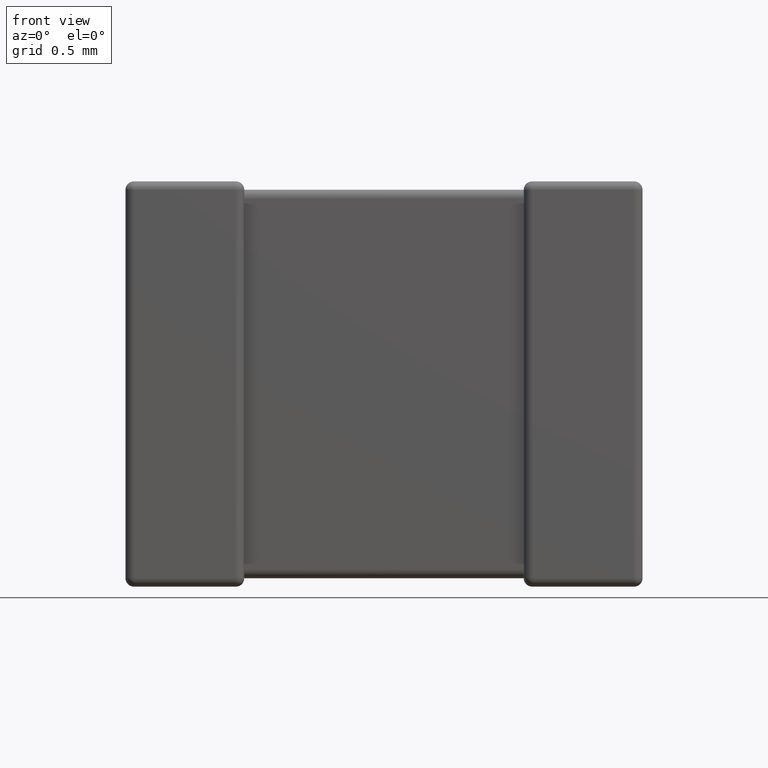
[diagram: clean part render]
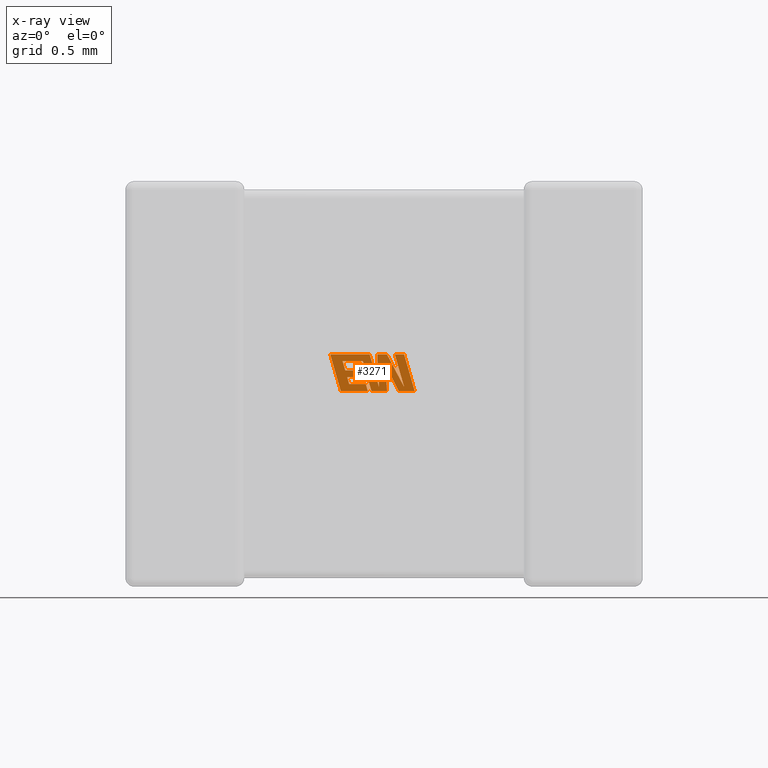
[diagram: x-ray — body ghosted, one internal face saturated and labeled with its STEP entity id]
A machine part, front view, then the same camera in x-ray: the body is ghosted and one INTERNAL B-rep face — a face not visible from any outside direction — is saturated and labeled: STEP entity #3271.
In plain terms, the highlighted planar face has unit normal (0, -1, 0).
Its self-contained STEP definition (entity closure, byte-faithful):
#7 = VECTOR ( 'NONE', #524, 1000.000000000000000 ) ;
#12 = LINE ( 'NONE', #2098, #1568 ) ;
#37 = VERTEX_POINT ( 'NONE', #759 ) ;
#47 = CARTESIAN_POINT ( 'NONE',  ( 1.719779381685080600, 2.239680000000000300, -1.450588152432583400 ) ) ;
#48 = VERTEX_POINT ( 'NONE', #4341 ) ;
#178 = VERTEX_POINT ( 'NONE', #3732 ) ;
#198 = EDGE_CURVE ( 'NONE', #2280, #4676, #2817, .T. ) ;
#221 = DIRECTION ( 'NONE',  ( -1.000000000000000000, 0.0000000000000000000, 0.0000000000000000000 ) ) ;
#295 = DIRECTION ( 'NONE',  ( 1.000000000000000000, 0.0000000000000000000, 0.0000000000000000000 ) ) ;
#297 = VECTOR ( 'NONE', #1107, 1000.000000000000100 ) ;
#300 = VECTOR ( 'NONE', #2156, 1000.000000000000200 ) ;
#311 = EDGE_CURVE ( 'NONE', #4676, #2644, #3141, .T. ) ;
#332 = CARTESIAN_POINT ( 'NONE',  ( 1.993825055172228100, 2.239680000000000300, -1.238589999999999900 ) ) ;
#382 = VECTOR ( 'NONE', #4554, 1000.000000000000000 ) ;
#413 = ORIENTED_EDGE ( 'NONE', *, *, #1275, .F. ) ;
#439 = CARTESIAN_POINT ( 'NONE',  ( 1.871558922654546400, 2.239680000000000300, -1.500427594001502800 ) ) ;
#465 = ORIENTED_EDGE ( 'NONE', *, *, #3300, .F. ) ;
#481 = CARTESIAN_POINT ( 'NONE',  ( 1.698695883152314000, 2.239680000000000300, -1.401886401347971300 ) ) ;
#492 = VECTOR ( 'NONE', #2305, 1000.000000000000100 ) ;
#515 = CARTESIAN_POINT ( 'NONE',  ( 1.954265106198868500, 2.239680000000000300, -1.500427594001502800 ) ) ;
#524 = DIRECTION ( 'NONE',  ( 0.4668459304955247000, 0.0000000000000000000, -0.8843386665637592600 ) ) ;
#534 = LINE ( 'NONE', #3538, #1614 ) ;
#540 = CARTESIAN_POINT ( 'NONE',  ( 1.994551138952188600, 2.239680000000000300, -1.472819691327440900 ) ) ;
#545 = CARTESIAN_POINT ( 'NONE',  ( 1.733934830817171400, 2.239680000000000300, -1.500427594001502800 ) ) ;
#560 = ORIENTED_EDGE ( 'NONE', *, *, #3293, .F. ) ;
#566 = CARTESIAN_POINT ( 'NONE',  ( 1.540497991155025600, 2.239680000000000300, -1.500427594001502800 ) ) ;
#639 = CARTESIAN_POINT ( 'NONE',  ( 1.814163107572999100, 2.239680000000000300, -1.471697127589175900 ) ) ;
#724 = VECTOR ( 'NONE', #2971, 1000.000000000000000 ) ;
#759 = CARTESIAN_POINT ( 'NONE',  ( 1.994551138952188600, 2.239680000000000300, -1.472819691327440900 ) ) ;
#783 = ORIENTED_EDGE ( 'NONE', *, *, #311, .F. ) ;
#798 = CARTESIAN_POINT ( 'NONE',  ( 1.553959998429676800, 2.239680000000000300, -1.288404761090040000 ) ) ;
#837 = CARTESIAN_POINT ( 'NONE',  ( 1.801096784111157800, 2.239680000000000300, -1.238589999999999900 ) ) ;
#862 = CARTESIAN_POINT ( 'NONE',  ( 2.069105294098018800, 2.239680000000000300, -1.500427594001502800 ) ) ;
#967 = VERTEX_POINT ( 'NONE', #332 ) ;
#999 = LINE ( 'NONE', #439, #724 ) ;
#1049 = CARTESIAN_POINT ( 'NONE',  ( 2.069105294098018800, 2.239680000000000300, -1.500427594001502800 ) ) ;
#1053 = EDGE_CURVE ( 'NONE', #4375, #3859, #3065, .T. ) ;
#1066 = VECTOR ( 'NONE', #2029, 1000.000000000000200 ) ;
#1084 = VERTEX_POINT ( 'NONE', #2652 ) ;
#1107 = DIRECTION ( 'NONE',  ( 0.2793947940878428500, 0.0000000000000000000, -0.9601763114327555000 ) ) ;
#1108 = VECTOR ( 'NONE', #4088, 1000.000000000000200 ) ;
#1127 = CARTESIAN_POINT ( 'NONE',  ( 1.733934830817171400, 2.239680000000000300, -1.500427594001502800 ) ) ;
#1147 = LINE ( 'NONE', #515, #1621 ) ;
#1173 = LINE ( 'NONE', #3213, #300 ) ;
#1175 = EDGE_CURVE ( 'NONE', #967, #3788, #2166, .T. ) ;
#1250 = CARTESIAN_POINT ( 'NONE',  ( 1.927288075097057800, 2.239680000000000300, -1.238589999999999900 ) ) ;
#1275 = EDGE_CURVE ( 'NONE', #2200, #2600, #1173, .T. ) ;
#1298 = CARTESIAN_POINT ( 'NONE',  ( 1.993825055172228100, 2.239680000000000300, -1.238589999999999900 ) ) ;
#1366 = EDGE_CURVE ( 'NONE', #1369, #48, #2659, .T. ) ;
#1369 = VERTEX_POINT ( 'NONE', #3949 ) ;
#1378 = CARTESIAN_POINT ( 'NONE',  ( 1.760051554850793100, 2.239680000000000300, -1.500427594001502800 ) ) ;
#1392 = CARTESIAN_POINT ( 'NONE',  ( 1.801096784111157800, 2.239680000000000300, -1.238589999999999900 ) ) ;
#1413 = CARTESIAN_POINT ( 'NONE',  ( 1.572502203732613300, 2.239680000000000300, -1.353481612160163400 ) ) ;
#1446 = VECTOR ( 'NONE', #4637, 1000.000000000000000 ) ;
#1455 = EDGE_CURVE ( 'NONE', #1822, #3282, #4364, .T. ) ;
#1456 = LINE ( 'NONE', #798, #1108 ) ;
#1516 = VECTOR ( 'NONE', #2738, 1000.000000000000000 ) ;
#1568 = VECTOR ( 'NONE', #295, 1000.000000000000000 ) ;
#1614 = VECTOR ( 'NONE', #3202, 1000.000000000000200 ) ;
#1621 = VECTOR ( 'NONE', #3755, 1000.000000000000100 ) ;
#1631 = LINE ( 'NONE', #1250, #1516 ) ;
#1667 = DIRECTION ( 'NONE',  ( 0.0000000000000000000, 0.0000000000000000000, -1.000000000000000000 ) ) ;
#1681 = EDGE_CURVE ( 'NONE', #48, #3148, #999, .T. ) ;
#1685 = LINE ( 'NONE', #1392, #1446 ) ;
#1713 = CARTESIAN_POINT ( 'NONE',  ( 1.861489397514085200, 2.239680000000000300, -1.313367452646506500 ) ) ;
#1749 = ORIENTED_EDGE ( 'NONE', *, *, #2217, .F. ) ;
#1750 = LINE ( 'NONE', #862, #4069 ) ;
#1805 = CARTESIAN_POINT ( 'NONE',  ( 1.698695883152314000, 2.239680000000000300, -1.401886401347971300 ) ) ;
#1822 = VERTEX_POINT ( 'NONE', #2733 ) ;
#1909 = EDGE_LOOP ( 'NONE', ( #4249, #2130, #2897, #4321, #2487, #3274, #783, #2092, #2215, #4456, #4494, #2271, #465, #3008, #560, #413, #3803, #3808, #1749, #4356, #3523, #2984, #3751 ) ) ;
#1976 = VECTOR ( 'NONE', #3467, 1000.000000000000000 ) ;
#2027 = CARTESIAN_POINT ( 'NONE',  ( 1.700624941055589800, 2.239680000000000300, -1.238589999999999900 ) ) ;
#2029 = DIRECTION ( 'NONE',  ( 0.2763139702539146300, 0.0000000000000000000, -0.9610674221107063900 ) ) ;
#2040 = VERTEX_POINT ( 'NONE', #3773 ) ;
#2052 = DIRECTION ( 'NONE',  ( 0.0000000000000000000, -1.000000000000000000, 0.0000000000000000000 ) ) ;
#2083 = LINE ( 'NONE', #1805, #3298 ) ;
#2092 = ORIENTED_EDGE ( 'NONE', *, *, #198, .F. ) ;
#2098 = CARTESIAN_POINT ( 'NONE',  ( 1.572502203732613300, 2.239680000000000300, -1.353481612160163400 ) ) ;
#2115 = VECTOR ( 'NONE', #2135, 1000.000000000000000 ) ;
#2130 = ORIENTED_EDGE ( 'NONE', *, *, #1175, .F. ) ;
#2135 = DIRECTION ( 'NONE',  ( 0.2732148821746424000, 0.0000000000000000000, -0.9619530280415443700 ) ) ;
#2156 = DIRECTION ( 'NONE',  ( 0.2746459304917039400, 0.0000000000000000000, -0.9615454294334439000 ) ) ;
#2166 = LINE ( 'NONE', #1298, #1066 ) ;
#2200 = VERTEX_POINT ( 'NONE', #3114 ) ;
#2215 = ORIENTED_EDGE ( 'NONE', *, *, #2333, .F. ) ;
#2217 = EDGE_CURVE ( 'NONE', #2727, #1084, #3492, .T. ) ;
#2271 = ORIENTED_EDGE ( 'NONE', *, *, #1053, .F. ) ;
#2279 = VERTEX_POINT ( 'NONE', #1413 ) ;
#2280 = VERTEX_POINT ( 'NONE', #2801 ) ;
#2286 = EDGE_CURVE ( 'NONE', #2279, #2200, #12, .T. ) ;
#2305 = DIRECTION ( 'NONE',  ( -0.2760118818968593800, 0.0000000000000000000, 0.9611542233438680200 ) ) ;
#2333 = EDGE_CURVE ( 'NONE', #2040, #2280, #3708, .T. ) ;
#2348 = DIRECTION ( 'NONE',  ( -1.000000000000000000, 0.0000000000000000000, 0.0000000000000000000 ) ) ;
#2394 = VERTEX_POINT ( 'NONE', #2760 ) ;
#2414 = CARTESIAN_POINT ( 'NONE',  ( 1.954265106198868500, 2.239680000000000300, -1.500427594001502800 ) ) ;
#2428 = VECTOR ( 'NONE', #221, 1000.000000000000000 ) ;
#2464 = VECTOR ( 'NONE', #3639, 1000.000000000000000 ) ;
#2487 = ORIENTED_EDGE ( 'NONE', *, *, #3019, .F. ) ;
#2600 = VERTEX_POINT ( 'NONE', #481 ) ;
#2644 = VERTEX_POINT ( 'NONE', #837 ) ;
#2646 = EDGE_CURVE ( 'NONE', #4670, #1369, #1147, .T. ) ;
#2648 = LINE ( 'NONE', #545, #2428 ) ;
#2652 = CARTESIAN_POINT ( 'NONE',  ( 1.553959998429676800, 2.239680000000000300, -1.288404761090040000 ) ) ;
#2659 = LINE ( 'NONE', #1713, #3721 ) ;
#2727 = VERTEX_POINT ( 'NONE', #3581 ) ;
#2733 = CARTESIAN_POINT ( 'NONE',  ( 1.586312126153601700, 2.239680000000000300, -1.401886401347971300 ) ) ;
#2738 = DIRECTION ( 'NONE',  ( 1.000000000000000000, 0.0000000000000000000, 0.0000000000000000000 ) ) ;
#2743 = CARTESIAN_POINT ( 'NONE',  ( 1.719779381685080600, 2.239680000000000300, -1.450588152432583400 ) ) ;
#2751 = CARTESIAN_POINT ( 'NONE',  ( 1.699108286000269300, 2.239680000000000300, -1.288404761090040000 ) ) ;
#2760 = CARTESIAN_POINT ( 'NONE',  ( 1.870900345051778700, 2.239680000000000300, -1.238589999999999900 ) ) ;
#2780 = DIRECTION ( 'NONE',  ( -0.05596501978068186400, 0.0000000000000000000, 0.9984327301130245800 ) ) ;
#2789 = EDGE_CURVE ( 'NONE', #3148, #2727, #534, .T. ) ;
#2801 = CARTESIAN_POINT ( 'NONE',  ( 1.747231239827945500, 2.239680000000000300, -1.238589999999999900 ) ) ;
#2817 = LINE ( 'NONE', #4408, #4060 ) ;
#2822 = LINE ( 'NONE', #540, #492 ) ;
#2832 = VERTEX_POINT ( 'NONE', #4677 ) ;
#2869 = CARTESIAN_POINT ( 'NONE',  ( 1.600483498175578200, 2.239680000000000300, -1.450588152432583400 ) ) ;
#2897 = ORIENTED_EDGE ( 'NONE', *, *, #4008, .F. ) ;
#2971 = DIRECTION ( 'NONE',  ( -1.000000000000000000, 0.0000000000000000000, 0.0000000000000000000 ) ) ;
#2984 = ORIENTED_EDGE ( 'NONE', *, *, #1366, .F. ) ;
#3008 = ORIENTED_EDGE ( 'NONE', *, *, #1455, .F. ) ;
#3019 = EDGE_CURVE ( 'NONE', #2394, #37, #4509, .T. ) ;
#3022 = DIRECTION ( 'NONE',  ( 0.2759782365590801000, 0.0000000000000000000, -0.9611638845408936300 ) ) ;
#3042 = AXIS2_PLACEMENT_3D ( 'NONE', #4217, #2052, #1667 ) ;
#3065 = LINE ( 'NONE', #47, #2115 ) ;
#3114 = CARTESIAN_POINT ( 'NONE',  ( 1.684870037841423900, 2.239680000000000300, -1.353481612160163400 ) ) ;
#3141 = LINE ( 'NONE', #639, #3891 ) ;
#3148 = VERTEX_POINT ( 'NONE', #1378 ) ;
#3190 = DIRECTION ( 'NONE',  ( 0.05375259206908434400, 0.0000000000000000000, -0.9985542843760946100 ) ) ;
#3202 = DIRECTION ( 'NONE',  ( -0.2762517575166416100, 0.0000000000000000000, 0.9610853065513833600 ) ) ;
#3213 = CARTESIAN_POINT ( 'NONE',  ( 1.684870037841423900, 2.239680000000000300, -1.353481612160163400 ) ) ;
#3223 = DIRECTION ( 'NONE',  ( -1.000000000000000000, 0.0000000000000000000, 0.0000000000000000000 ) ) ;
#3271 = ADVANCED_FACE ( 'NONE', ( #4390 ), #3836, .T. ) ;
#3274 = ORIENTED_EDGE ( 'NONE', *, *, #4483, .F. ) ;
#3282 = VERTEX_POINT ( 'NONE', #2869 ) ;
#3293 = EDGE_CURVE ( 'NONE', #2600, #1822, #2083, .T. ) ;
#3298 = VECTOR ( 'NONE', #3223, 1000.000000000000000 ) ;
#3300 = EDGE_CURVE ( 'NONE', #3282, #4375, #3423, .T. ) ;
#3423 = LINE ( 'NONE', #4440, #2464 ) ;
#3467 = DIRECTION ( 'NONE',  ( -0.2765379750249969400, 0.0000000000000000000, 0.9610029908221275900 ) ) ;
#3492 = LINE ( 'NONE', #2751, #3894 ) ;
#3523 = ORIENTED_EDGE ( 'NONE', *, *, #1681, .F. ) ;
#3538 = CARTESIAN_POINT ( 'NONE',  ( 1.760051554850793100, 2.239680000000000300, -1.500427594001502800 ) ) ;
#3581 = CARTESIAN_POINT ( 'NONE',  ( 1.699108286000269300, 2.239680000000000300, -1.288404761090040000 ) ) ;
#3639 = DIRECTION ( 'NONE',  ( 1.000000000000000000, 0.0000000000000000000, 0.0000000000000000000 ) ) ;
#3640 = CARTESIAN_POINT ( 'NONE',  ( 1.586312126153601700, 2.239680000000000300, -1.401886401347971300 ) ) ;
#3708 = LINE ( 'NONE', #2027, #382 ) ;
#3721 = VECTOR ( 'NONE', #3190, 1000.000000000000200 ) ;
#3732 = CARTESIAN_POINT ( 'NONE',  ( 1.927288075097057800, 2.239680000000000300, -1.238589999999999900 ) ) ;
#3751 = ORIENTED_EDGE ( 'NONE', *, *, #2646, .F. ) ;
#3755 = DIRECTION ( 'NONE',  ( -0.4443210308329503800, 0.0000000000000000000, 0.8958676361826809500 ) ) ;
#3773 = CARTESIAN_POINT ( 'NONE',  ( 1.465151672025832600, 2.239680000000000300, -1.238589999999999900 ) ) ;
#3788 = VERTEX_POINT ( 'NONE', #1049 ) ;
#3803 = ORIENTED_EDGE ( 'NONE', *, *, #2286, .F. ) ;
#3808 = ORIENTED_EDGE ( 'NONE', *, *, #3915, .F. ) ;
#3836 = PLANE ( 'NONE',  #3042 ) ;
#3847 = LINE ( 'NONE', #566, #1976 ) ;
#3859 = VERTEX_POINT ( 'NONE', #1127 ) ;
#3891 = VECTOR ( 'NONE', #2780, 1000.000000000000200 ) ;
#3894 = VECTOR ( 'NONE', #4592, 1000.000000000000000 ) ;
#3915 = EDGE_CURVE ( 'NONE', #1084, #2279, #1456, .T. ) ;
#3949 = CARTESIAN_POINT ( 'NONE',  ( 1.861489397514085200, 2.239680000000000300, -1.313367452646506500 ) ) ;
#4008 = EDGE_CURVE ( 'NONE', #178, #967, #1631, .T. ) ;
#4029 = EDGE_CURVE ( 'NONE', #3788, #4670, #1750, .T. ) ;
#4060 = VECTOR ( 'NONE', #3022, 1000.000000000000200 ) ;
#4069 = VECTOR ( 'NONE', #2348, 1000.000000000000000 ) ;
#4088 = DIRECTION ( 'NONE',  ( 0.2740217765953990000, 0.0000000000000000000, -0.9617234872620618000 ) ) ;
#4104 = EDGE_CURVE ( 'NONE', #2832, #2040, #3847, .T. ) ;
#4106 = CARTESIAN_POINT ( 'NONE',  ( 1.870900345051778700, 2.239680000000000300, -1.238589999999999900 ) ) ;
#4194 = EDGE_CURVE ( 'NONE', #3859, #2832, #2648, .T. ) ;
#4217 = CARTESIAN_POINT ( 'NONE',  ( -0.0002456965282611293900, 2.239679999999999400, -0.3580587491940538900 ) ) ;
#4248 = EDGE_CURVE ( 'NONE', #37, #178, #2822, .T. ) ;
#4249 = ORIENTED_EDGE ( 'NONE', *, *, #4029, .F. ) ;
#4321 = ORIENTED_EDGE ( 'NONE', *, *, #4248, .F. ) ;
#4341 = CARTESIAN_POINT ( 'NONE',  ( 1.871558922654546400, 2.239680000000000300, -1.500427594001502800 ) ) ;
#4356 = ORIENTED_EDGE ( 'NONE', *, *, #2789, .F. ) ;
#4364 = LINE ( 'NONE', #3640, #297 ) ;
#4375 = VERTEX_POINT ( 'NONE', #2743 ) ;
#4390 = FACE_OUTER_BOUND ( 'NONE', #1909, .T. ) ;
#4408 = CARTESIAN_POINT ( 'NONE',  ( 1.747231239827945500, 2.239680000000000300, -1.238589999999999900 ) ) ;
#4440 = CARTESIAN_POINT ( 'NONE',  ( 1.600483498175578200, 2.239680000000000300, -1.450588152432583400 ) ) ;
#4456 = ORIENTED_EDGE ( 'NONE', *, *, #4104, .F. ) ;
#4483 = EDGE_CURVE ( 'NONE', #2644, #2394, #1685, .T. ) ;
#4494 = ORIENTED_EDGE ( 'NONE', *, *, #4194, .F. ) ;
#4509 = LINE ( 'NONE', #4106, #7 ) ;
#4554 = DIRECTION ( 'NONE',  ( 1.000000000000000000, 0.0000000000000000000, -2.459231407381525800E-015 ) ) ;
#4586 = CARTESIAN_POINT ( 'NONE',  ( 1.814163107572999100, 2.239680000000000300, -1.471697127589175900 ) ) ;
#4592 = DIRECTION ( 'NONE',  ( -1.000000000000000000, 0.0000000000000000000, 0.0000000000000000000 ) ) ;
#4637 = DIRECTION ( 'NONE',  ( 1.000000000000000000, 0.0000000000000000000, 0.0000000000000000000 ) ) ;
#4670 = VERTEX_POINT ( 'NONE', #2414 ) ;
#4676 = VERTEX_POINT ( 'NONE', #4586 ) ;
#4677 = CARTESIAN_POINT ( 'NONE',  ( 1.540497991155025600, 2.239680000000000300, -1.500427594001502800 ) ) ;